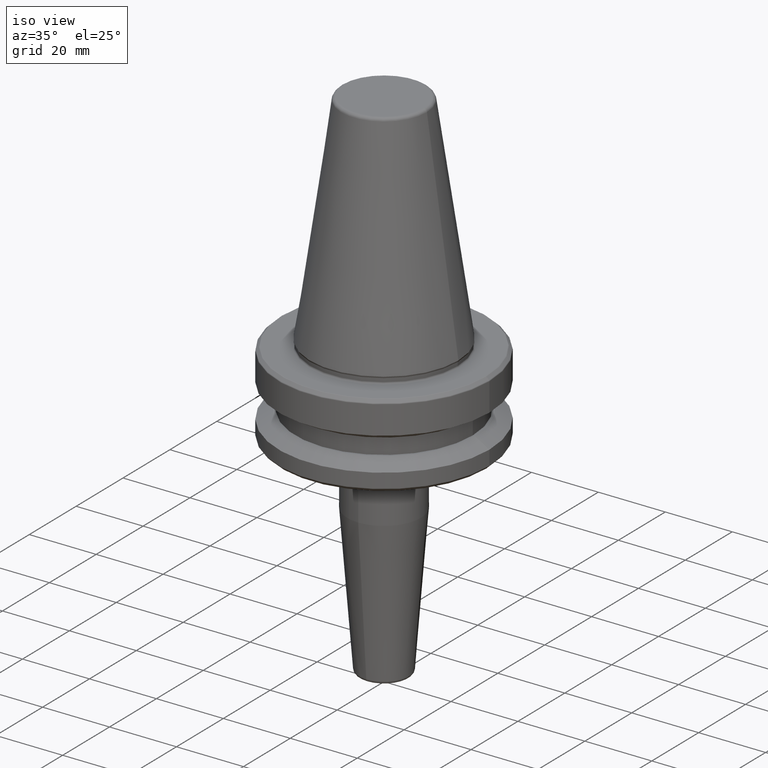
[diagram: clean part render]
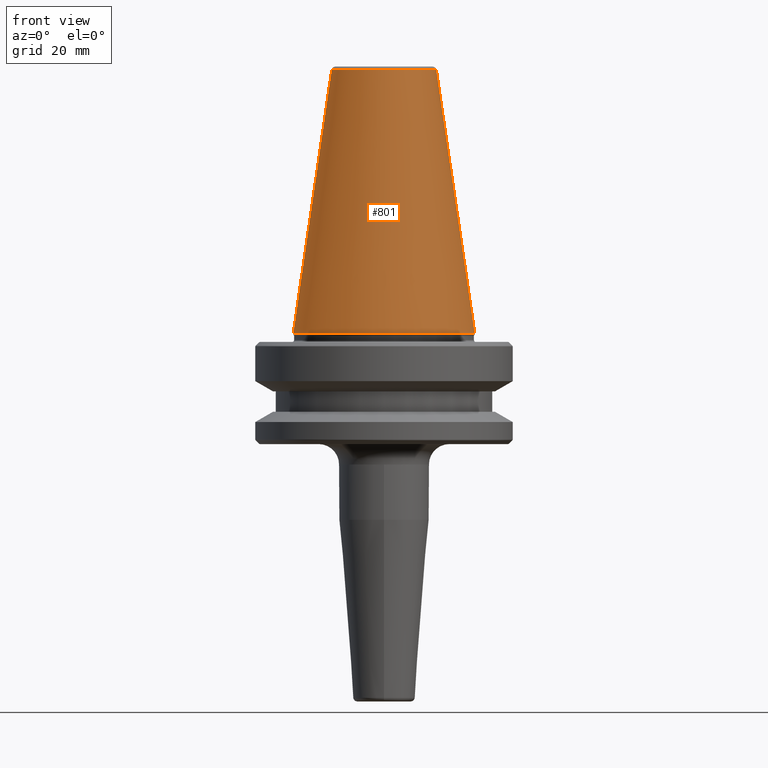
[diagram: tour spotlight — one face highlighted and labeled with its STEP entity id]
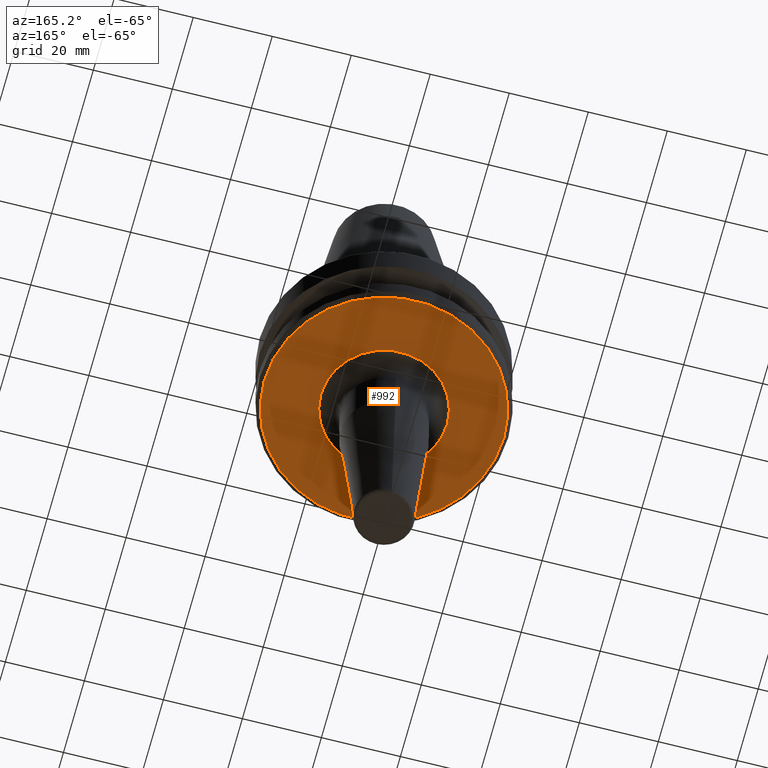
[diagram: tour spotlight — one face highlighted and labeled with its STEP entity id]
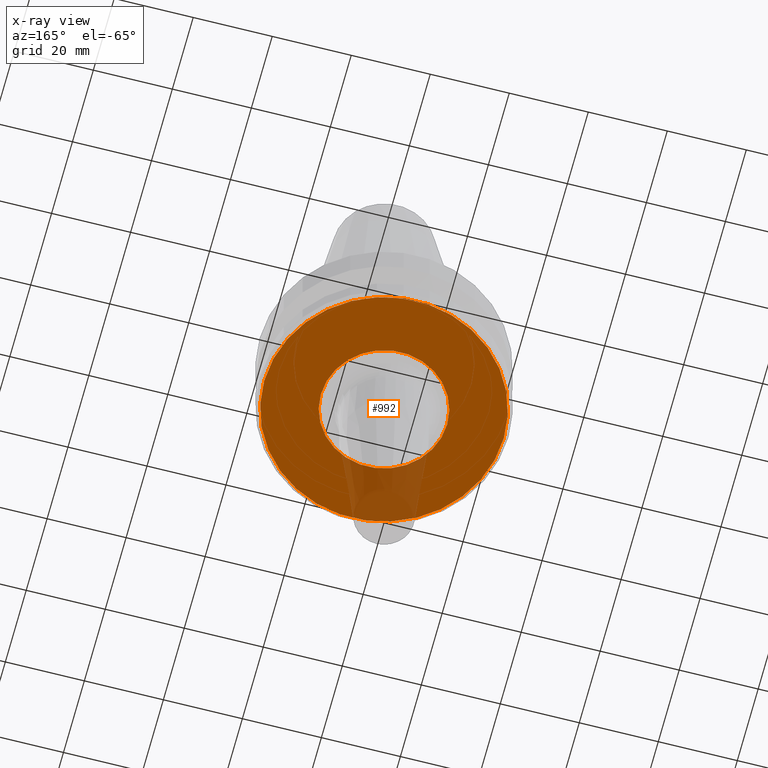
[diagram: x-ray of the same camera — body ghosted, this tour face saturated]
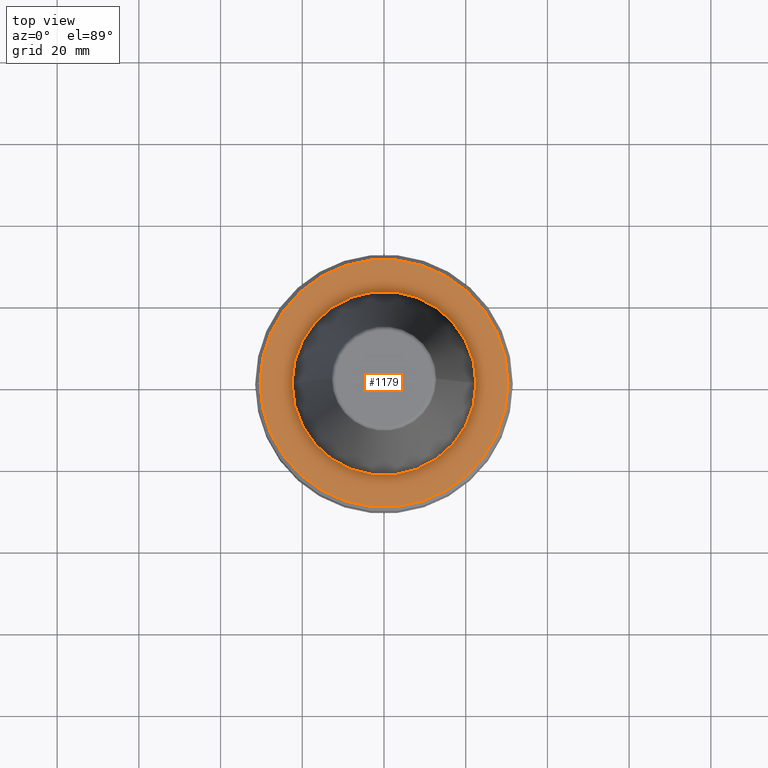
[diagram: tour spotlight — one face highlighted and labeled with its STEP entity id]
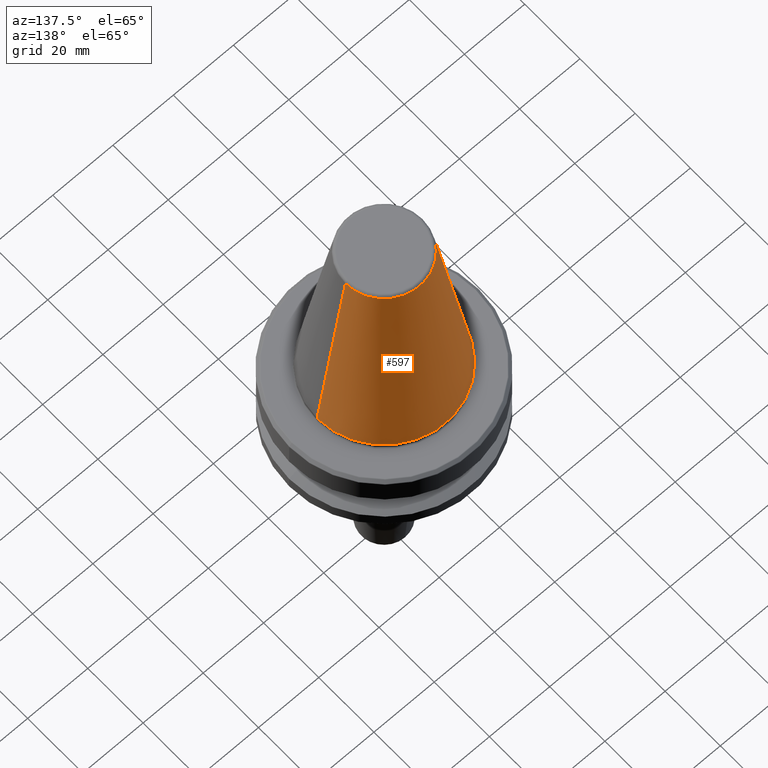
[diagram: tour spotlight — one face highlighted and labeled with its STEP entity id]
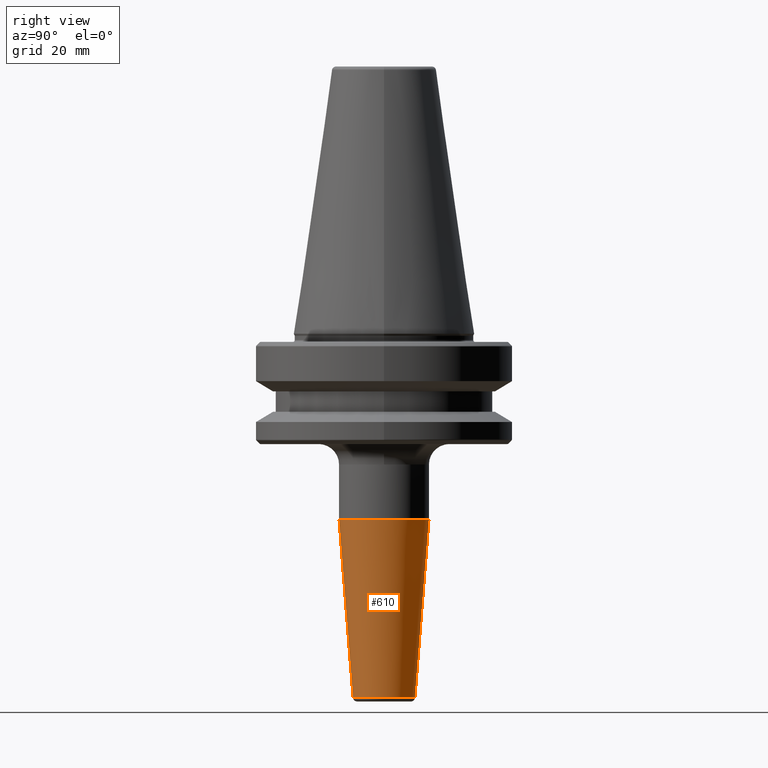
[diagram: tour spotlight — one face highlighted and labeled with its STEP entity id]
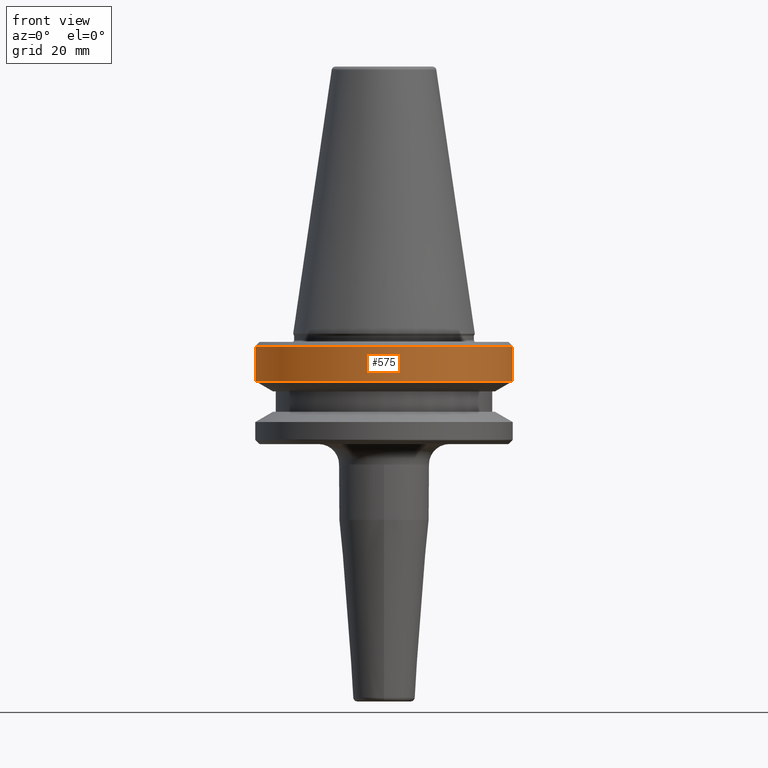
[diagram: tour spotlight — one face highlighted and labeled with its STEP entity id]
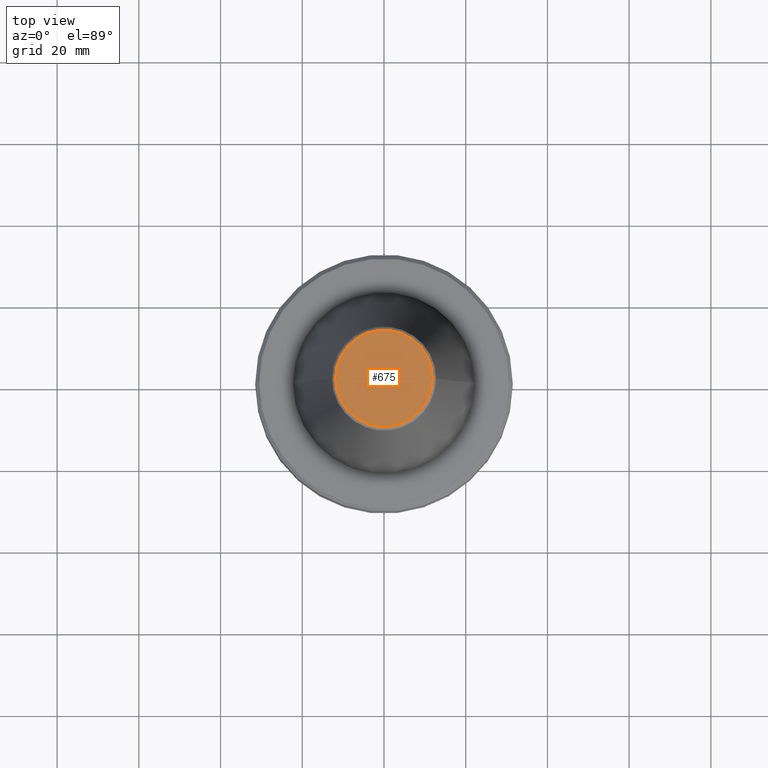
[diagram: tour spotlight — one face highlighted and labeled with its STEP entity id]
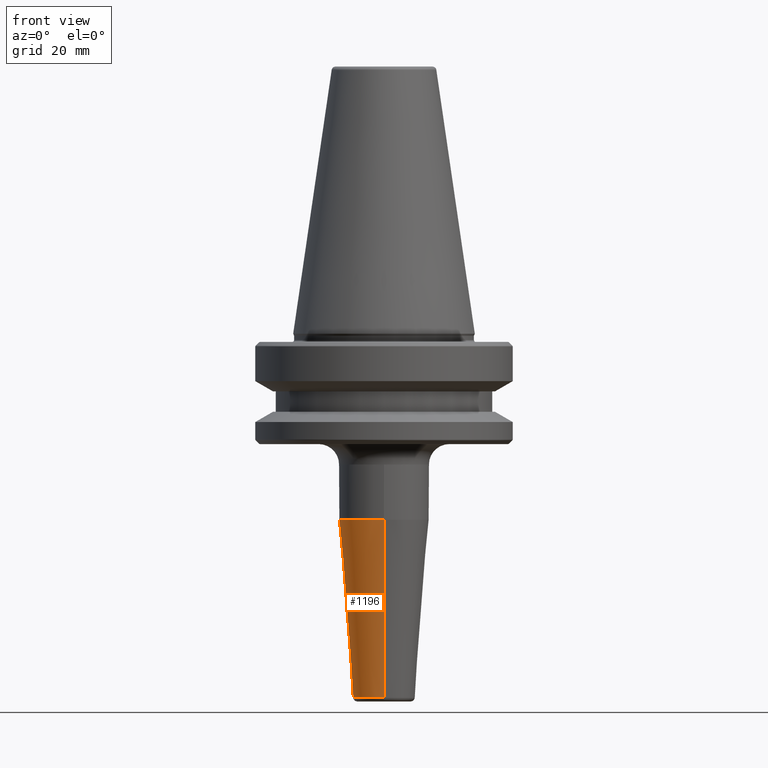
[diagram: tour spotlight — one face highlighted and labeled with its STEP entity id]
A machine part: a face-by-face anatomy tour. The part has 46 B-rep faces; the first image is the clean iso view, then the 8 largest visible faces are spotlighted one at a time (largest first), each with its STEP entity span.

Face 1 — front view, entity #801. In plain terms, the highlighted conical surface has half-angle 8.297 deg.
Definition (entity closure, byte-faithful):
#5 = AXIS2_PLACEMENT_3D ( 'NONE', #518, #1213, #622 ) ;
#31 = CARTESIAN_POINT ( 'NONE',  ( 12.81219950706224800, 1.569041911636107800E-015, 64.54430822726730800 ) ) ;
#36 = DIRECTION ( 'NONE',  ( -0.1443082272673071000, 0.0000000000000000000, -0.9895327864921743500 ) ) ;
#68 = DIRECTION ( 'NONE',  ( 1.000000000000000000, 0.0000000000000000000, 0.0000000000000000000 ) ) ;
#194 = ORIENTED_EDGE ( 'NONE', *, *, #1280, .T. ) ;
#200 = DIRECTION ( 'NONE',  ( 0.0000000000000000000, 0.0000000000000000000, -1.000000000000000000 ) ) ;
#327 = CARTESIAN_POINT ( 'NONE',  ( -22.22500000000000500, 2.721777511104993200E-015, 0.0000000000000000000 ) ) ;
#336 = EDGE_CURVE ( 'NONE', #849, #585, #1225, .T. ) ;
#338 = DIRECTION ( 'NONE',  ( 0.1443082272673071000, 1.767266086135364600E-017, -0.9895327864921743500 ) ) ;
#375 = CONICAL_SURFACE ( 'NONE', #539, 12.81219950706224800, 0.1448138465474191100 ) ;
#410 = CARTESIAN_POINT ( 'NONE',  ( 12.81219950706224800, 2.145409711370550300E-015, 64.54430822726730800 ) ) ;
#422 = ORIENTED_EDGE ( 'NONE', *, *, #336, .F. ) ;
#518 = CARTESIAN_POINT ( 'NONE',  ( 0.0000000000000000000, 0.0000000000000000000, 64.54430822726730800 ) ) ;
#539 = AXIS2_PLACEMENT_3D ( 'NONE', #586, #200, #981 ) ;
#585 = VERTEX_POINT ( 'NONE', #596 ) ;
#586 = CARTESIAN_POINT ( 'NONE',  ( 0.0000000000000000000, 0.0000000000000000000, 64.54430822726730800 ) ) ;
#596 = CARTESIAN_POINT ( 'NONE',  ( 22.22500000000000500, 0.0000000000000000000, 0.0000000000000000000 ) ) ;
#616 = VECTOR ( 'NONE', #36, 1000.000000000000000 ) ;
#622 = DIRECTION ( 'NONE',  ( 1.000000000000000000, 0.0000000000000000000, 0.0000000000000000000 ) ) ;
#670 = DIRECTION ( 'NONE',  ( -0.0000000000000000000, -0.0000000000000000000, 1.000000000000000000 ) ) ;
#735 = CARTESIAN_POINT ( 'NONE',  ( -12.81219950706224800, 0.0000000000000000000, 64.54430822726730800 ) ) ;
#801 = ADVANCED_FACE ( 'NONE', ( #927 ), #375, .T. ) ;
#849 = VERTEX_POINT ( 'NONE', #410 ) ;
#851 = CIRCLE ( 'NONE', #1144, 22.22500000000000500 ) ;
#864 = CIRCLE ( 'NONE', #5, 12.81219950706224800 ) ;
#876 = LINE ( 'NONE', #735, #616 ) ;
#880 = EDGE_CURVE ( 'NONE', #1077, #849, #864, .T. ) ;
#890 = VERTEX_POINT ( 'NONE', #327 ) ;
#927 = FACE_OUTER_BOUND ( 'NONE', #1067, .T. ) ;
#945 = ORIENTED_EDGE ( 'NONE', *, *, #880, .F. ) ;
#981 = DIRECTION ( 'NONE',  ( -1.000000000000000000, 0.0000000000000000000, 0.0000000000000000000 ) ) ;
#1046 = CARTESIAN_POINT ( 'NONE',  ( -12.81219950706224800, 0.0000000000000000000, 64.54430822726730800 ) ) ;
#1067 = EDGE_LOOP ( 'NONE', ( #422, #945, #1242, #194 ) ) ;
#1077 = VERTEX_POINT ( 'NONE', #1046 ) ;
#1144 = AXIS2_PLACEMENT_3D ( 'NONE', #1254, #670, #68 ) ;
#1162 = VECTOR ( 'NONE', #338, 1000.000000000000000 ) ;
#1213 = DIRECTION ( 'NONE',  ( -0.0000000000000000000, -0.0000000000000000000, 1.000000000000000000 ) ) ;
#1225 = LINE ( 'NONE', #31, #1162 ) ;
#1240 = EDGE_CURVE ( 'NONE', #1077, #890, #876, .T. ) ;
#1242 = ORIENTED_EDGE ( 'NONE', *, *, #1240, .T. ) ;
#1254 = CARTESIAN_POINT ( 'NONE',  ( 0.0000000000000000000, 0.0000000000000000000, 0.0000000000000000000 ) ) ;
#1280 = EDGE_CURVE ( 'NONE', #890, #585, #851, .T. ) ;

Face 2 — auxiliary view, entity #992. An x-ray twin of the same camera follows (body ghosted, this face saturated) — the face is partly hidden behind the body. In plain terms, the highlighted planar face has unit normal (0, 0, -1).
Definition (entity closure, byte-faithful):
#12 = ORIENTED_EDGE ( 'NONE', *, *, #485, .F. ) ;
#18 = DIRECTION ( 'NONE',  ( 1.000000000000000000, 0.0000000000000000000, 0.0000000000000000000 ) ) ;
#38 = DIRECTION ( 'NONE',  ( -1.000000000000000000, 0.0000000000000000000, -0.0000000000000000000 ) ) ;
#57 = CIRCLE ( 'NONE', #406, 16.00000000000002500 ) ;
#88 = AXIS2_PLACEMENT_3D ( 'NONE', #1202, #611, #18 ) ;
#115 = CARTESIAN_POINT ( 'NONE',  ( -16.00000000000002500, 2.786511573650823900E-015, -27.00000000000000400 ) ) ;
#138 = VERTEX_POINT ( 'NONE', #540 ) ;
#239 = CARTESIAN_POINT ( 'NONE',  ( 0.0000000000000000000, 2.786511573650823900E-015, -27.00000000000000400 ) ) ;
#257 = FACE_OUTER_BOUND ( 'NONE', #545, .T. ) ;
#318 = VERTEX_POINT ( 'NONE', #432 ) ;
#332 = CIRCLE ( 'NONE', #1061, 30.33431457505076200 ) ;
#337 = DIRECTION ( 'NONE',  ( -1.000000000000000000, 0.0000000000000000000, 0.0000000000000000000 ) ) ;
#402 = CARTESIAN_POINT ( 'NONE',  ( 30.33431457505076200, 0.0000000000000000000, -26.99999999999999600 ) ) ;
#406 = AXIS2_PLACEMENT_3D ( 'NONE', #239, #921, #337 ) ;
#432 = CARTESIAN_POINT ( 'NONE',  ( -30.33431457505076200, 3.732201245991191800E-015, -26.99999999999999600 ) ) ;
#480 = EDGE_CURVE ( 'NONE', #761, #138, #57, .T. ) ;
#482 = EDGE_LOOP ( 'NONE', ( #604, #623 ) ) ;
#485 = EDGE_CURVE ( 'NONE', #318, #561, #332, .T. ) ;
#526 = DIRECTION ( 'NONE',  ( -0.0000000000000000000, -0.0000000000000000000, 1.000000000000000000 ) ) ;
#533 = DIRECTION ( 'NONE',  ( -0.0000000000000000000, -0.0000000000000000000, 1.000000000000000000 ) ) ;
#540 = CARTESIAN_POINT ( 'NONE',  ( 16.00000000000002500, 4.745946452286592600E-015, -27.00000000000000400 ) ) ;
#545 = EDGE_LOOP ( 'NONE', ( #1056, #12 ) ) ;
#561 = VERTEX_POINT ( 'NONE', #402 ) ;
#604 = ORIENTED_EDGE ( 'NONE', *, *, #480, .T. ) ;
#611 = DIRECTION ( 'NONE',  ( -0.0000000000000000000, -0.0000000000000000000, 1.000000000000000000 ) ) ;
#623 = ORIENTED_EDGE ( 'NONE', *, *, #987, .T. ) ;
#636 = DIRECTION ( 'NONE',  ( 0.0000000000000000000, 0.0000000000000000000, -1.000000000000000000 ) ) ;
#761 = VERTEX_POINT ( 'NONE', #115 ) ;
#774 = EDGE_CURVE ( 'NONE', #561, #318, #1218, .T. ) ;
#921 = DIRECTION ( 'NONE',  ( -0.0000000000000000000, -0.0000000000000000000, 1.000000000000000000 ) ) ;
#934 = PLANE ( 'NONE',  #982 ) ;
#982 = AXIS2_PLACEMENT_3D ( 'NONE', #1029, #636, #38 ) ;
#987 = EDGE_CURVE ( 'NONE', #138, #761, #1259, .T. ) ;
#992 = ADVANCED_FACE ( 'NONE', ( #1034, #257 ), #934, .T. ) ;
#1029 = CARTESIAN_POINT ( 'NONE',  ( 0.0000000000000000000, 3.088089149698245900E-015, -27.00000000000000400 ) ) ;
#1034 = FACE_BOUND ( 'NONE', #482, .T. ) ;
#1054 = AXIS2_PLACEMENT_3D ( 'NONE', #1131, #533, #1228 ) ;
#1056 = ORIENTED_EDGE ( 'NONE', *, *, #774, .F. ) ;
#1061 = AXIS2_PLACEMENT_3D ( 'NONE', #1121, #526, #1220 ) ;
#1121 = CARTESIAN_POINT ( 'NONE',  ( 0.0000000000000000000, 0.0000000000000000000, -26.99999999999999600 ) ) ;
#1131 = CARTESIAN_POINT ( 'NONE',  ( 0.0000000000000000000, 2.786511573650823900E-015, -27.00000000000000400 ) ) ;
#1202 = CARTESIAN_POINT ( 'NONE',  ( 0.0000000000000000000, 0.0000000000000000000, -26.99999999999999600 ) ) ;
#1218 = CIRCLE ( 'NONE', #88, 30.33431457505076200 ) ;
#1220 = DIRECTION ( 'NONE',  ( 1.000000000000000000, 0.0000000000000000000, 0.0000000000000000000 ) ) ;
#1228 = DIRECTION ( 'NONE',  ( -1.000000000000000000, 0.0000000000000000000, 0.0000000000000000000 ) ) ;
#1259 = CIRCLE ( 'NONE', #1054, 16.00000000000002500 ) ;

Face 3 — top view, entity #1179. In plain terms, the highlighted planar face has unit normal (0, -0, 1).
Definition (entity closure, byte-faithful):
#15 = DIRECTION ( 'NONE',  ( -0.0000000000000000000, -0.0000000000000000000, 1.000000000000000000 ) ) ;
#24 = PLANE ( 'NONE',  #1230 ) ;
#102 = FACE_OUTER_BOUND ( 'NONE', #667, .T. ) ;
#128 = CARTESIAN_POINT ( 'NONE',  ( 0.0000000000000000000, 0.0000000000000000000, -2.000000000000002700 ) ) ;
#180 = AXIS2_PLACEMENT_3D ( 'NONE', #988, #409, #1088 ) ;
#222 = CARTESIAN_POINT ( 'NONE',  ( -22.50000000000000000, 2.755455298081544800E-015, -2.000000000000001300 ) ) ;
#366 = AXIS2_PLACEMENT_3D ( 'NONE', #607, #15, #712 ) ;
#369 = CARTESIAN_POINT ( 'NONE',  ( 22.50000000000000000, 0.0000000000000000000, -2.000000000000001300 ) ) ;
#371 = FACE_BOUND ( 'NONE', #867, .T. ) ;
#373 = DIRECTION ( 'NONE',  ( -0.0000000000000000000, -0.0000000000000000000, 1.000000000000000000 ) ) ;
#409 = DIRECTION ( 'NONE',  ( -0.0000000000000000000, -0.0000000000000000000, 1.000000000000000000 ) ) ;
#428 = DIRECTION ( 'NONE',  ( 1.000000000000000000, 0.0000000000000000000, 0.0000000000000000000 ) ) ;
#449 = ORIENTED_EDGE ( 'NONE', *, *, #760, .F. ) ;
#464 = CARTESIAN_POINT ( 'NONE',  ( 0.0000000000000000000, 0.0000000000000000000, -2.000000000000001800 ) ) ;
#481 = ORIENTED_EDGE ( 'NONE', *, *, #1274, .T. ) ;
#523 = CIRCLE ( 'NONE', #180, 22.50000000000000000 ) ;
#551 = DIRECTION ( 'NONE',  ( 1.000000000000000000, 0.0000000000000000000, 0.0000000000000000000 ) ) ;
#574 = EDGE_CURVE ( 'NONE', #768, #677, #523, .T. ) ;
#582 = AXIS2_PLACEMENT_3D ( 'NONE', #464, #1155, #551 ) ;
#607 = CARTESIAN_POINT ( 'NONE',  ( 0.0000000000000000000, 0.0000000000000000000, -2.000000000000001800 ) ) ;
#667 = EDGE_LOOP ( 'NONE', ( #481, #946 ) ) ;
#677 = VERTEX_POINT ( 'NONE', #369 ) ;
#712 = DIRECTION ( 'NONE',  ( 1.000000000000000000, 0.0000000000000000000, 0.0000000000000000000 ) ) ;
#760 = EDGE_CURVE ( 'NONE', #677, #768, #1265, .T. ) ;
#768 = VERTEX_POINT ( 'NONE', #222 ) ;
#838 = VERTEX_POINT ( 'NONE', #1186 ) ;
#867 = EDGE_LOOP ( 'NONE', ( #449, #901 ) ) ;
#901 = ORIENTED_EDGE ( 'NONE', *, *, #574, .F. ) ;
#946 = ORIENTED_EDGE ( 'NONE', *, *, #1116, .T. ) ;
#953 = CIRCLE ( 'NONE', #582, 30.33431457505076200 ) ;
#958 = CARTESIAN_POINT ( 'NONE',  ( 0.0000000000000000000, 0.0000000000000000000, -2.000000000000001800 ) ) ;
#988 = CARTESIAN_POINT ( 'NONE',  ( 0.0000000000000000000, 0.0000000000000000000, -2.000000000000001800 ) ) ;
#996 = VERTEX_POINT ( 'NONE', #1025 ) ;
#1017 = DIRECTION ( 'NONE',  ( 0.0000000000000000000, -0.0000000000000000000, 1.000000000000000000 ) ) ;
#1025 = CARTESIAN_POINT ( 'NONE',  ( -30.33431457505076200, 3.732201245991191800E-015, -2.000000000000001800 ) ) ;
#1058 = DIRECTION ( 'NONE',  ( 1.000000000000000000, 0.0000000000000000000, 0.0000000000000000000 ) ) ;
#1088 = DIRECTION ( 'NONE',  ( 1.000000000000000000, 0.0000000000000000000, 0.0000000000000000000 ) ) ;
#1111 = CIRCLE ( 'NONE', #1183, 30.33431457505076200 ) ;
#1116 = EDGE_CURVE ( 'NONE', #996, #838, #953, .T. ) ;
#1155 = DIRECTION ( 'NONE',  ( -0.0000000000000000000, -0.0000000000000000000, 1.000000000000000000 ) ) ;
#1179 = ADVANCED_FACE ( 'NONE', ( #102, #371 ), #24, .T. ) ;
#1183 = AXIS2_PLACEMENT_3D ( 'NONE', #958, #373, #1058 ) ;
#1186 = CARTESIAN_POINT ( 'NONE',  ( 30.33431457505076200, 0.0000000000000000000, -2.000000000000001800 ) ) ;
#1230 = AXIS2_PLACEMENT_3D ( 'NONE', #128, #1017, #428 ) ;
#1265 = CIRCLE ( 'NONE', #366, 22.50000000000000000 ) ;
#1274 = EDGE_CURVE ( 'NONE', #838, #996, #1111, .T. ) ;

Face 4 — auxiliary view, entity #597. In plain terms, the highlighted conical surface has half-angle 8.297 deg.
Definition (entity closure, byte-faithful):
#9 = CARTESIAN_POINT ( 'NONE',  ( 0.0000000000000000000, 0.0000000000000000000, 0.0000000000000000000 ) ) ;
#31 = CARTESIAN_POINT ( 'NONE',  ( 12.81219950706224800, 1.569041911636107800E-015, 64.54430822726730800 ) ) ;
#36 = DIRECTION ( 'NONE',  ( -0.1443082272673071000, 0.0000000000000000000, -0.9895327864921743500 ) ) ;
#59 = EDGE_CURVE ( 'NONE', #585, #890, #1233, .T. ) ;
#63 = DIRECTION ( 'NONE',  ( 1.000000000000000000, 0.0000000000000000000, 0.0000000000000000000 ) ) ;
#114 = DIRECTION ( 'NONE',  ( 1.000000000000000000, 0.0000000000000000000, 0.0000000000000000000 ) ) ;
#119 = AXIS2_PLACEMENT_3D ( 'NONE', #773, #973, #390 ) ;
#188 = ORIENTED_EDGE ( 'NONE', *, *, #336, .T. ) ;
#295 = AXIS2_PLACEMENT_3D ( 'NONE', #1252, #666, #63 ) ;
#327 = CARTESIAN_POINT ( 'NONE',  ( -22.22500000000000500, 2.721777511104993200E-015, 0.0000000000000000000 ) ) ;
#336 = EDGE_CURVE ( 'NONE', #849, #585, #1225, .T. ) ;
#338 = DIRECTION ( 'NONE',  ( 0.1443082272673071000, 1.767266086135364600E-017, -0.9895327864921743500 ) ) ;
#349 = EDGE_LOOP ( 'NONE', ( #830, #188, #577, #873 ) ) ;
#390 = DIRECTION ( 'NONE',  ( -1.000000000000000000, 0.0000000000000000000, 0.0000000000000000000 ) ) ;
#410 = CARTESIAN_POINT ( 'NONE',  ( 12.81219950706224800, 2.145409711370550300E-015, 64.54430822726730800 ) ) ;
#577 = ORIENTED_EDGE ( 'NONE', *, *, #59, .T. ) ;
#585 = VERTEX_POINT ( 'NONE', #596 ) ;
#596 = CARTESIAN_POINT ( 'NONE',  ( 22.22500000000000500, 0.0000000000000000000, 0.0000000000000000000 ) ) ;
#597 = ADVANCED_FACE ( 'NONE', ( #637 ), #1192, .T. ) ;
#616 = VECTOR ( 'NONE', #36, 1000.000000000000000 ) ;
#637 = FACE_OUTER_BOUND ( 'NONE', #349, .T. ) ;
#666 = DIRECTION ( 'NONE',  ( -0.0000000000000000000, -0.0000000000000000000, 1.000000000000000000 ) ) ;
#681 = EDGE_CURVE ( 'NONE', #849, #1077, #839, .T. ) ;
#707 = DIRECTION ( 'NONE',  ( -0.0000000000000000000, -0.0000000000000000000, 1.000000000000000000 ) ) ;
#735 = CARTESIAN_POINT ( 'NONE',  ( -12.81219950706224800, 0.0000000000000000000, 64.54430822726730800 ) ) ;
#773 = CARTESIAN_POINT ( 'NONE',  ( 0.0000000000000000000, 0.0000000000000000000, 64.54430822726730800 ) ) ;
#830 = ORIENTED_EDGE ( 'NONE', *, *, #681, .F. ) ;
#839 = CIRCLE ( 'NONE', #295, 12.81219950706224800 ) ;
#849 = VERTEX_POINT ( 'NONE', #410 ) ;
#873 = ORIENTED_EDGE ( 'NONE', *, *, #1240, .F. ) ;
#876 = LINE ( 'NONE', #735, #616 ) ;
#890 = VERTEX_POINT ( 'NONE', #327 ) ;
#936 = AXIS2_PLACEMENT_3D ( 'NONE', #9, #707, #114 ) ;
#973 = DIRECTION ( 'NONE',  ( 0.0000000000000000000, 0.0000000000000000000, -1.000000000000000000 ) ) ;
#1046 = CARTESIAN_POINT ( 'NONE',  ( -12.81219950706224800, 0.0000000000000000000, 64.54430822726730800 ) ) ;
#1077 = VERTEX_POINT ( 'NONE', #1046 ) ;
#1162 = VECTOR ( 'NONE', #338, 1000.000000000000000 ) ;
#1192 = CONICAL_SURFACE ( 'NONE', #119, 12.81219950706224800, 0.1448138465474191100 ) ;
#1225 = LINE ( 'NONE', #31, #1162 ) ;
#1233 = CIRCLE ( 'NONE', #936, 22.22500000000000500 ) ;
#1240 = EDGE_CURVE ( 'NONE', #1077, #890, #876, .T. ) ;
#1252 = CARTESIAN_POINT ( 'NONE',  ( 0.0000000000000000000, 0.0000000000000000000, 64.54430822726730800 ) ) ;

Face 5 — right view, entity #610. In plain terms, the highlighted conical surface has half-angle 4.5 deg.
Definition (entity closure, byte-faithful):
#40 = DIRECTION ( 'NONE',  ( 9.608468044709264500E-018, 0.07845909572783750500, 0.9969173337331286300 ) ) ;
#54 = CARTESIAN_POINT ( 'NONE',  ( 0.0000000000000000000, -7.572526842074888800, -89.07845909572782300 ) ) ;
#80 = ORIENTED_EDGE ( 'NONE', *, *, #418, .T. ) ;
#99 = CARTESIAN_POINT ( 'NONE',  ( 0.0000000000000000000, 3.459646894893095400E-014, -89.07845909572782300 ) ) ;
#113 = VERTEX_POINT ( 'NONE', #884 ) ;
#129 = VERTEX_POINT ( 'NONE', #346 ) ;
#134 = VERTEX_POINT ( 'NONE', #450 ) ;
#166 = DIRECTION ( 'NONE',  ( 0.0000000000000000000, -0.07845909572783858800, 0.9969173337331284100 ) ) ;
#195 = LINE ( 'NONE', #1132, #393 ) ;
#197 = DIRECTION ( 'NONE',  ( -0.0000000000000000000, 5.573023147301644900E-016, -1.000000000000000000 ) ) ;
#208 = DIRECTION ( 'NONE',  ( 0.0000000000000000000, 1.000000000000000000, 0.0000000000000000000 ) ) ;
#221 = ORIENTED_EDGE ( 'NONE', *, *, #800, .F. ) ;
#244 = CIRCLE ( 'NONE', #1070, 11.00000000000002000 ) ;
#280 = ORIENTED_EDGE ( 'NONE', *, *, #1065, .F. ) ;
#346 = CARTESIAN_POINT ( 'NONE',  ( 9.273670758604469300E-016, -7.572526842074891500, -89.07845909572782300 ) ) ;
#361 = ORIENTED_EDGE ( 'NONE', *, *, #600, .T. ) ;
#393 = VECTOR ( 'NONE', #40, 999.9999999999998900 ) ;
#412 = CONICAL_SURFACE ( 'NONE', #1143, 7.572526842074923400, 0.07853981633973791700 ) ;
#418 = EDGE_CURVE ( 'NONE', #134, #113, #195, .T. ) ;
#450 = CARTESIAN_POINT ( 'NONE',  ( 0.0000000000000000000, 7.572526842074959900, -89.07845909572782300 ) ) ;
#483 = DIRECTION ( 'NONE',  ( 0.0000000000000000000, -5.573023147301644900E-016, 1.000000000000000000 ) ) ;
#484 = EDGE_LOOP ( 'NONE', ( #221, #80, #361, #280 ) ) ;
#600 = EDGE_CURVE ( 'NONE', #113, #1057, #244, .T. ) ;
#610 = ADVANCED_FACE ( 'NONE', ( #960 ), #412, .T. ) ;
#665 = CIRCLE ( 'NONE', #1243, 7.572526842074924300 ) ;
#725 = VECTOR ( 'NONE', #166, 1000.000000000000100 ) ;
#744 = CARTESIAN_POINT ( 'NONE',  ( 0.0000000000000000000, -11.00000000000001100, -45.52828342338445100 ) ) ;
#777 = CARTESIAN_POINT ( 'NONE',  ( 0.0000000000000000000, 1.032585523982868200E-014, -45.52828342338444400 ) ) ;
#789 = DIRECTION ( 'NONE',  ( -0.0000000000000000000, 5.573023147301644900E-016, -1.000000000000000000 ) ) ;
#800 = EDGE_CURVE ( 'NONE', #134, #129, #665, .T. ) ;
#877 = DIRECTION ( 'NONE',  ( 0.0000000000000000000, 1.000000000000000000, 6.308085367188378400E-016 ) ) ;
#884 = CARTESIAN_POINT ( 'NONE',  ( 1.347111479062091200E-015, 11.00000000000003000, -45.52828342338443700 ) ) ;
#960 = FACE_OUTER_BOUND ( 'NONE', #484, .T. ) ;
#977 = DIRECTION ( 'NONE',  ( 0.0000000000000000000, -1.000000000000000000, 0.0000000000000000000 ) ) ;
#979 = LINE ( 'NONE', #54, #725 ) ;
#1057 = VERTEX_POINT ( 'NONE', #744 ) ;
#1065 = EDGE_CURVE ( 'NONE', #129, #1057, #979, .T. ) ;
#1070 = AXIS2_PLACEMENT_3D ( 'NONE', #777, #197, #877 ) ;
#1132 = CARTESIAN_POINT ( 'NONE',  ( 9.273670758604469300E-016, 7.572526842074958100, -89.07845909572782300 ) ) ;
#1143 = AXIS2_PLACEMENT_3D ( 'NONE', #1267, #483, #977 ) ;
#1243 = AXIS2_PLACEMENT_3D ( 'NONE', #99, #789, #208 ) ;
#1267 = CARTESIAN_POINT ( 'NONE',  ( 0.0000000000000000000, 3.459646894893095400E-014, -89.07845909572782300 ) ) ;

Face 6 — front view, entity #575. In plain terms, the highlighted cylindrical surface (partial cylindrical patch) has radius 31.5 mm, axis along (-0, -0, 1).
Definition (entity closure, byte-faithful):
#53 = VERTEX_POINT ( 'NONE', #78 ) ;
#78 = CARTESIAN_POINT ( 'NONE',  ( 31.49999999999999300, 0.0000000000000000000, -3.165685424949243700 ) ) ;
#84 = ORIENTED_EDGE ( 'NONE', *, *, #669, .T. ) ;
#112 = LINE ( 'NONE', #171, #868 ) ;
#133 = DIRECTION ( 'NONE',  ( -0.0000000000000000000, -0.0000000000000000000, 1.000000000000000000 ) ) ;
#164 = ORIENTED_EDGE ( 'NONE', *, *, #713, .F. ) ;
#171 = CARTESIAN_POINT ( 'NONE',  ( 31.50000000000000000, 0.0000000000000000000, 69.75694866325665100 ) ) ;
#182 = CARTESIAN_POINT ( 'NONE',  ( -31.50000000000000000, 3.857637417314162700E-015, 69.75694866325665100 ) ) ;
#218 = AXIS2_PLACEMENT_3D ( 'NONE', #726, #133, #823 ) ;
#274 = FACE_OUTER_BOUND ( 'NONE', #766, .T. ) ;
#305 = CARTESIAN_POINT ( 'NONE',  ( 0.0000000000000000000, 0.0000000000000000000, 69.75694866325665100 ) ) ;
#348 = CARTESIAN_POINT ( 'NONE',  ( 31.50000000000000000, 0.0000000000000000000, -11.59985799368323700 ) ) ;
#374 = AXIS2_PLACEMENT_3D ( 'NONE', #398, #1081, #490 ) ;
#398 = CARTESIAN_POINT ( 'NONE',  ( 0.0000000000000000000, 0.0000000000000000000, -3.165685424949243700 ) ) ;
#490 = DIRECTION ( 'NONE',  ( 1.000000000000000000, 0.0000000000000000000, 0.0000000000000000000 ) ) ;
#502 = VERTEX_POINT ( 'NONE', #1020 ) ;
#525 = EDGE_CURVE ( 'NONE', #502, #53, #1078, .T. ) ;
#573 = ORIENTED_EDGE ( 'NONE', *, *, #1189, .T. ) ;
#575 = ADVANCED_FACE ( 'NONE', ( #274 ), #1226, .T. ) ;
#590 = DIRECTION ( 'NONE',  ( -0.0000000000000000000, -0.0000000000000000000, 1.000000000000000000 ) ) ;
#669 = EDGE_CURVE ( 'NONE', #1042, #53, #112, .T. ) ;
#708 = VERTEX_POINT ( 'NONE', #961 ) ;
#713 = EDGE_CURVE ( 'NONE', #708, #502, #1097, .T. ) ;
#726 = CARTESIAN_POINT ( 'NONE',  ( 0.0000000000000000000, 0.0000000000000000000, -11.59985799368323700 ) ) ;
#766 = EDGE_LOOP ( 'NONE', ( #164, #573, #84, #902 ) ) ;
#805 = VECTOR ( 'NONE', #1193, 1000.000000000000000 ) ;
#823 = DIRECTION ( 'NONE',  ( 1.000000000000000000, 0.0000000000000000000, 0.0000000000000000000 ) ) ;
#861 = CIRCLE ( 'NONE', #218, 31.50000000000000000 ) ;
#868 = VECTOR ( 'NONE', #1052, 1000.000000000000000 ) ;
#902 = ORIENTED_EDGE ( 'NONE', *, *, #525, .F. ) ;
#961 = CARTESIAN_POINT ( 'NONE',  ( -31.50000000000000000, 3.857637417314162700E-015, -11.59985799368323700 ) ) ;
#1020 = CARTESIAN_POINT ( 'NONE',  ( -31.49999999999999300, 3.857637417314161900E-015, -3.165685424949243700 ) ) ;
#1042 = VERTEX_POINT ( 'NONE', #348 ) ;
#1052 = DIRECTION ( 'NONE',  ( -0.0000000000000000000, -0.0000000000000000000, 1.000000000000000000 ) ) ;
#1078 = CIRCLE ( 'NONE', #374, 31.49999999999999300 ) ;
#1081 = DIRECTION ( 'NONE',  ( -0.0000000000000000000, -0.0000000000000000000, 1.000000000000000000 ) ) ;
#1085 = DIRECTION ( 'NONE',  ( 1.000000000000000000, 0.0000000000000000000, 0.0000000000000000000 ) ) ;
#1097 = LINE ( 'NONE', #182, #805 ) ;
#1189 = EDGE_CURVE ( 'NONE', #708, #1042, #861, .T. ) ;
#1193 = DIRECTION ( 'NONE',  ( -0.0000000000000000000, -0.0000000000000000000, 1.000000000000000000 ) ) ;
#1226 = CYLINDRICAL_SURFACE ( 'NONE', #1262, 31.50000000000000000 ) ;
#1262 = AXIS2_PLACEMENT_3D ( 'NONE', #305, #590, #1085 ) ;

Face 7 — top view, entity #675. In plain terms, the highlighted planar face has unit normal (0, -0, 1).
Definition (entity closure, byte-faithful):
#27 = CARTESIAN_POINT ( 'NONE',  ( 0.0000000000000000000, 0.0000000000000000000, 65.40000000000000600 ) ) ;
#135 = DIRECTION ( 'NONE',  ( 1.000000000000000000, 0.0000000000000000000, 0.0000000000000000000 ) ) ;
#176 = DIRECTION ( 'NONE',  ( 0.0000000000000000000, -0.0000000000000000000, 1.000000000000000000 ) ) ;
#245 = AXIS2_PLACEMENT_3D ( 'NONE', #27, #727, #135 ) ;
#272 = DIRECTION ( 'NONE',  ( -0.0000000000000000000, -0.0000000000000000000, 1.000000000000000000 ) ) ;
#456 = AXIS2_PLACEMENT_3D ( 'NONE', #1152, #176, #859 ) ;
#499 = VERTEX_POINT ( 'NONE', #821 ) ;
#554 = PLANE ( 'NONE',  #456 ) ;
#664 = EDGE_CURVE ( 'NONE', #806, #499, #701, .T. ) ;
#675 = ADVANCED_FACE ( 'NONE', ( #1137 ), #554, .T. ) ;
#691 = AXIS2_PLACEMENT_3D ( 'NONE', #856, #272, #952 ) ;
#701 = CIRCLE ( 'NONE', #691, 11.82266672057007100 ) ;
#727 = DIRECTION ( 'NONE',  ( -0.0000000000000000000, -0.0000000000000000000, 1.000000000000000000 ) ) ;
#806 = VERTEX_POINT ( 'NONE', #985 ) ;
#821 = CARTESIAN_POINT ( 'NONE',  ( 11.82266672057007100, 0.0000000000000000000, 65.40000000000000600 ) ) ;
#856 = CARTESIAN_POINT ( 'NONE',  ( 0.0000000000000000000, 0.0000000000000000000, 65.40000000000000600 ) ) ;
#859 = DIRECTION ( 'NONE',  ( 1.000000000000000000, 0.0000000000000000000, 0.0000000000000000000 ) ) ;
#929 = EDGE_CURVE ( 'NONE', #499, #806, #1090, .T. ) ;
#952 = DIRECTION ( 'NONE',  ( 1.000000000000000000, 0.0000000000000000000, 0.0000000000000000000 ) ) ;
#972 = ORIENTED_EDGE ( 'NONE', *, *, #929, .T. ) ;
#985 = CARTESIAN_POINT ( 'NONE',  ( -11.82266672057007100, 1.508450503654657300E-015, 65.40000000000000600 ) ) ;
#994 = ORIENTED_EDGE ( 'NONE', *, *, #664, .T. ) ;
#1007 = EDGE_LOOP ( 'NONE', ( #972, #994 ) ) ;
#1090 = CIRCLE ( 'NONE', #245, 11.82266672057007100 ) ;
#1137 = FACE_OUTER_BOUND ( 'NONE', #1007, .T. ) ;
#1152 = CARTESIAN_POINT ( 'NONE',  ( 0.0000000000000000000, 0.0000000000000000000, 65.40000000000000600 ) ) ;

Face 8 — front view, entity #1196. In plain terms, the highlighted conical surface has half-angle 4.5 deg.
Definition (entity closure, byte-faithful):
#11 = EDGE_CURVE ( 'NONE', #129, #134, #967, .T. ) ;
#35 = CARTESIAN_POINT ( 'NONE',  ( 0.0000000000000000000, 3.459646894893095400E-014, -89.07845909572782300 ) ) ;
#40 = DIRECTION ( 'NONE',  ( 9.608468044709264500E-018, 0.07845909572783750500, 0.9969173337331286300 ) ) ;
#44 = ORIENTED_EDGE ( 'NONE', *, *, #1065, .T. ) ;
#54 = CARTESIAN_POINT ( 'NONE',  ( 0.0000000000000000000, -7.572526842074888800, -89.07845909572782300 ) ) ;
#113 = VERTEX_POINT ( 'NONE', #884 ) ;
#129 = VERTEX_POINT ( 'NONE', #346 ) ;
#132 = CARTESIAN_POINT ( 'NONE',  ( 0.0000000000000000000, 1.032585523982868200E-014, -45.52828342338444400 ) ) ;
#134 = VERTEX_POINT ( 'NONE', #450 ) ;
#147 = DIRECTION ( 'NONE',  ( 0.0000000000000000000, 1.000000000000000000, 0.0000000000000000000 ) ) ;
#154 = AXIS2_PLACEMENT_3D ( 'NONE', #173, #625, #522 ) ;
#166 = DIRECTION ( 'NONE',  ( 0.0000000000000000000, -0.07845909572783858800, 0.9969173337331284100 ) ) ;
#173 = CARTESIAN_POINT ( 'NONE',  ( 0.0000000000000000000, 3.459646894893095400E-014, -89.07845909572782300 ) ) ;
#195 = LINE ( 'NONE', #1132, #393 ) ;
#240 = DIRECTION ( 'NONE',  ( 0.0000000000000000000, 1.000000000000000000, 6.308085367188378400E-016 ) ) ;
#277 = EDGE_CURVE ( 'NONE', #1057, #113, #959, .T. ) ;
#316 = EDGE_LOOP ( 'NONE', ( #510, #1075, #44, #565 ) ) ;
#346 = CARTESIAN_POINT ( 'NONE',  ( 9.273670758604469300E-016, -7.572526842074891500, -89.07845909572782300 ) ) ;
#393 = VECTOR ( 'NONE', #40, 999.9999999999998900 ) ;
#418 = EDGE_CURVE ( 'NONE', #134, #113, #195, .T. ) ;
#450 = CARTESIAN_POINT ( 'NONE',  ( 0.0000000000000000000, 7.572526842074959900, -89.07845909572782300 ) ) ;
#510 = ORIENTED_EDGE ( 'NONE', *, *, #418, .F. ) ;
#522 = DIRECTION ( 'NONE',  ( 0.0000000000000000000, -1.000000000000000000, 0.0000000000000000000 ) ) ;
#565 = ORIENTED_EDGE ( 'NONE', *, *, #277, .T. ) ;
#625 = DIRECTION ( 'NONE',  ( 0.0000000000000000000, -5.573023147301644900E-016, 1.000000000000000000 ) ) ;
#711 = AXIS2_PLACEMENT_3D ( 'NONE', #35, #734, #147 ) ;
#725 = VECTOR ( 'NONE', #166, 1000.000000000000100 ) ;
#734 = DIRECTION ( 'NONE',  ( -0.0000000000000000000, 5.573023147301644900E-016, -1.000000000000000000 ) ) ;
#744 = CARTESIAN_POINT ( 'NONE',  ( 0.0000000000000000000, -11.00000000000001100, -45.52828342338445100 ) ) ;
#822 = DIRECTION ( 'NONE',  ( -0.0000000000000000000, 5.573023147301644900E-016, -1.000000000000000000 ) ) ;
#884 = CARTESIAN_POINT ( 'NONE',  ( 1.347111479062091200E-015, 11.00000000000003000, -45.52828342338443700 ) ) ;
#959 = CIRCLE ( 'NONE', #969, 11.00000000000002000 ) ;
#967 = CIRCLE ( 'NONE', #711, 7.572526842074924300 ) ;
#969 = AXIS2_PLACEMENT_3D ( 'NONE', #132, #822, #240 ) ;
#979 = LINE ( 'NONE', #54, #725 ) ;
#1057 = VERTEX_POINT ( 'NONE', #744 ) ;
#1065 = EDGE_CURVE ( 'NONE', #129, #1057, #979, .T. ) ;
#1075 = ORIENTED_EDGE ( 'NONE', *, *, #11, .F. ) ;
#1126 = FACE_OUTER_BOUND ( 'NONE', #316, .T. ) ;
#1132 = CARTESIAN_POINT ( 'NONE',  ( 9.273670758604469300E-016, 7.572526842074958100, -89.07845909572782300 ) ) ;
#1172 = CONICAL_SURFACE ( 'NONE', #154, 7.572526842074923400, 0.07853981633973791700 ) ;
#1196 = ADVANCED_FACE ( 'NONE', ( #1126 ), #1172, .T. ) ;